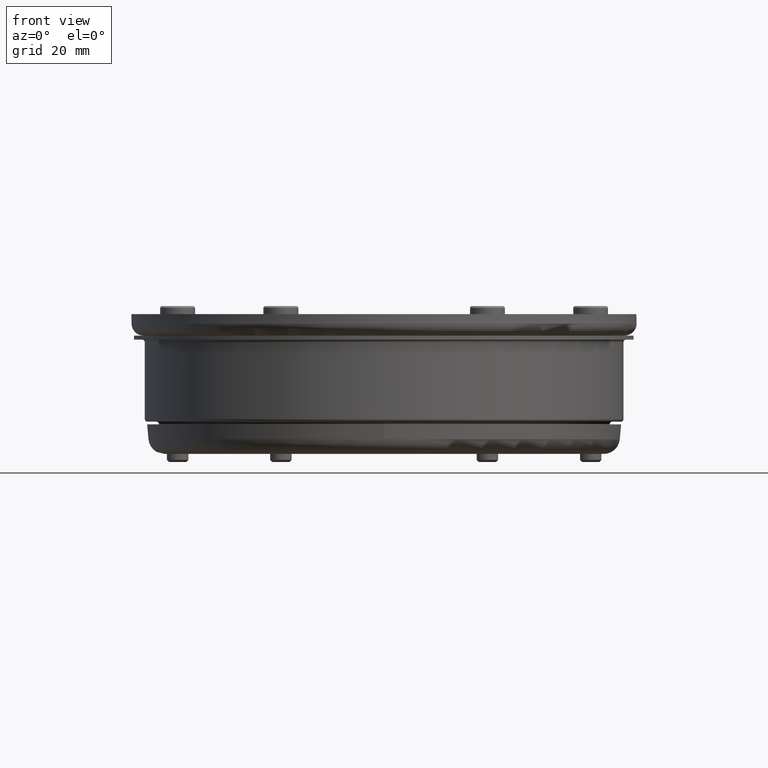
[diagram: clean part render]
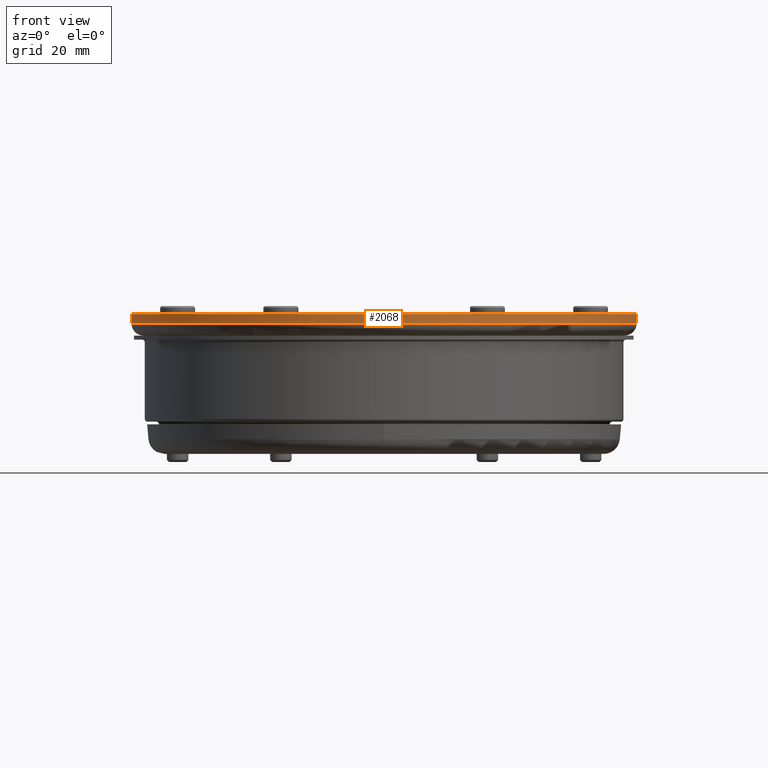
[diagram: same view with one face highlighted and labeled with its STEP entity id]
A machine part, front view. The second image highlights one B-rep face of the part: STEP entity #2068.
In plain terms, the highlighted cylindrical surface (bore or boss wall) has radius 94 mm, axis along (0, 0, -1).
Its self-contained STEP definition (entity closure, byte-faithful):
#208=CYLINDRICAL_SURFACE('',#2408,94.);
#290=FACE_OUTER_BOUND('',#421,.T.);
#421=EDGE_LOOP('',(#1704,#1705,#1706,#1707,#1708,#1709));
#558=LINE('',#3644,#639);
#639=VECTOR('',#2961,94.);
#792=CIRCLE('',#2405,94.);
#793=CIRCLE('',#2406,94.);
#795=CIRCLE('',#2409,94.);
#796=CIRCLE('',#2410,94.);
#996=VERTEX_POINT('',#3636);
#997=VERTEX_POINT('',#3638);
#998=VERTEX_POINT('',#3643);
#999=VERTEX_POINT('',#3645);
#1252=EDGE_CURVE('',#996,#997,#792,.T.);
#1253=EDGE_CURVE('',#997,#996,#793,.T.);
#1255=EDGE_CURVE('',#997,#998,#558,.T.);
#1256=EDGE_CURVE('',#998,#999,#795,.T.);
#1257=EDGE_CURVE('',#999,#998,#796,.T.);
#1704=ORIENTED_EDGE('',*,*,#1253,.F.);
#1705=ORIENTED_EDGE('',*,*,#1255,.T.);
#1706=ORIENTED_EDGE('',*,*,#1256,.T.);
#1707=ORIENTED_EDGE('',*,*,#1257,.T.);
#1708=ORIENTED_EDGE('',*,*,#1255,.F.);
#1709=ORIENTED_EDGE('',*,*,#1252,.F.);
#2068=ADVANCED_FACE('',(#290),#208,.T.);
#2405=AXIS2_PLACEMENT_3D('',#3639,#2953,#2954);
#2406=AXIS2_PLACEMENT_3D('',#3640,#2955,#2956);
#2408=AXIS2_PLACEMENT_3D('',#3642,#2959,#2960);
#2409=AXIS2_PLACEMENT_3D('',#3646,#2962,#2963);
#2410=AXIS2_PLACEMENT_3D('',#3647,#2964,#2965);
#2953=DIRECTION('center_axis',(0.,-1.,0.));
#2954=DIRECTION('ref_axis',(-1.,0.,0.));
#2955=DIRECTION('center_axis',(0.,-1.,0.));
#2956=DIRECTION('ref_axis',(-1.,0.,0.));
#2959=DIRECTION('center_axis',(0.,-1.,0.));
#2960=DIRECTION('ref_axis',(-1.,0.,0.));
#2961=DIRECTION('',(0.,1.,0.));
#2962=DIRECTION('center_axis',(0.,-1.,0.));
#2963=DIRECTION('ref_axis',(0.,0.,-1.));
#2964=DIRECTION('center_axis',(0.,-1.,0.));
#2965=DIRECTION('ref_axis',(0.,0.,-1.));
#3636=CARTESIAN_POINT('',(-1.15116799119851E-14,-0.999999999999998,94.));
#3638=CARTESIAN_POINT('',(94.,-0.999999999999998,1.15116799119851E-14));
#3639=CARTESIAN_POINT('Origin',(0.,-0.999999999999998,0.));
#3640=CARTESIAN_POINT('Origin',(0.,-0.999999999999998,0.));
#3642=CARTESIAN_POINT('Origin',(0.,-2.5,0.));
#3643=CARTESIAN_POINT('',(94.,2.5,1.15116799119851E-14));
#3644=CARTESIAN_POINT('',(94.,-2.5,1.15116799119851E-14));
#3645=CARTESIAN_POINT('',(0.,2.5,-94.));
#3646=CARTESIAN_POINT('Origin',(0.,2.5,0.));
#3647=CARTESIAN_POINT('Origin',(0.,2.5,0.));